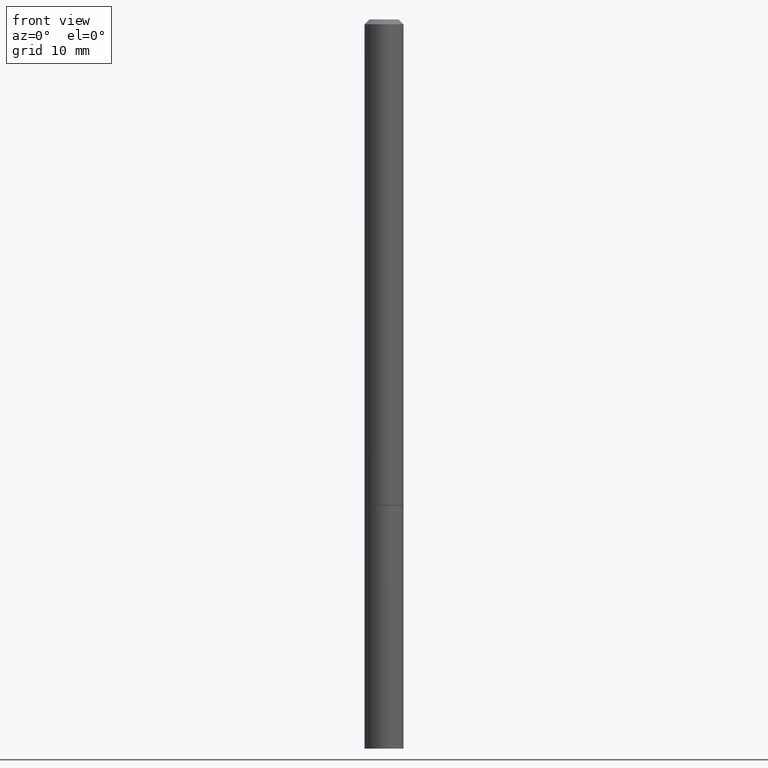
[diagram: clean part render]
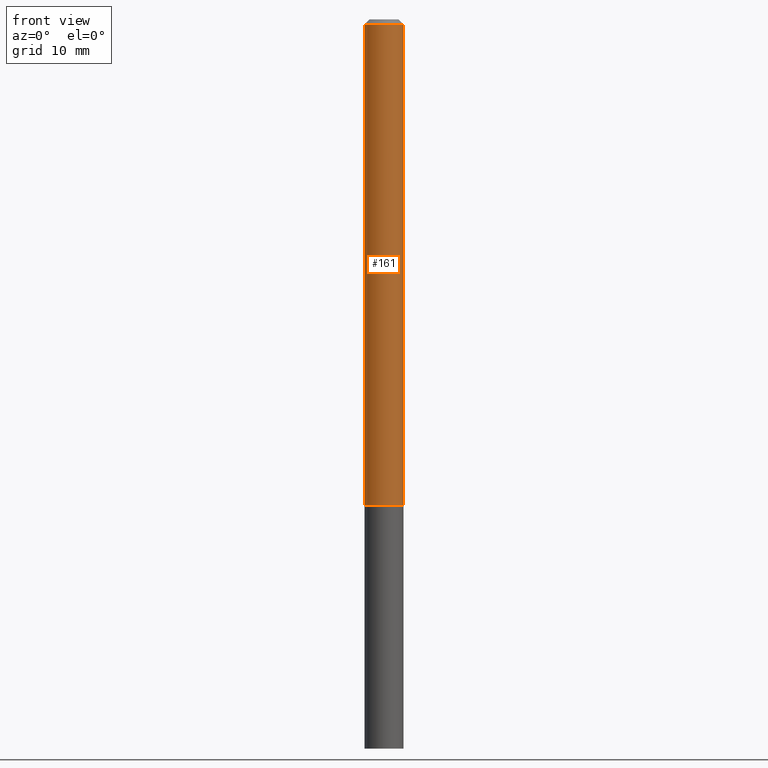
[diagram: same view with one face highlighted and labeled with its STEP entity id]
A machine part, front view. The second image highlights one B-rep face of the part: STEP entity #161.
In plain terms, the highlighted cylindrical surface (edge-blend (fillet) strip) has radius 2.0002 mm, axis along (-0, 0, 1).
Its self-contained STEP definition (entity closure, byte-faithful):
#10 = ORIENTED_EDGE ( 'NONE', *, *, #339, .T. ) ;
#18 = EDGE_CURVE ( 'NONE', #108, #316, #27, .T. ) ;
#20 = CARTESIAN_POINT ( 'NONE',  ( -0.07874999999999987566, 5.595524044110780128E-16, -3.873661383575732186E-30 ) ) ;
#27 = CIRCLE ( 'NONE', #251, 0.07875000000000000056 ) ;
#35 = CARTESIAN_POINT ( 'NONE',  ( 4.811459876169255671E-29, -6.869489534173887122E-15, -1.967499999999999805 ) ) ;
#42 = DIRECTION ( 'NONE',  ( -2.445468806185136597E-29, 3.491481338843145583E-15, 1.000000000000000000 ) ) ;
#69 = DIRECTION ( 'NONE',  ( 1.000000000000000000, -6.982962677686266711E-15, 4.876176775795935793E-29 ) ) ;
#84 = DIRECTION ( 'NONE',  ( -2.445468806185136597E-29, 3.491481338843145583E-15, 1.000000000000000000 ) ) ;
#89 = VECTOR ( 'NONE', #143, 39.37007874015748143 ) ;
#95 = FACE_OUTER_BOUND ( 'NONE', #109, .T. ) ;
#108 = VERTEX_POINT ( 'NONE', #270 ) ;
#109 = EDGE_LOOP ( 'NONE', ( #178, #337, #10, #290 ) ) ;
#116 = VERTEX_POINT ( 'NONE', #156 ) ;
#120 = LINE ( 'NONE', #234, #89 ) ;
#134 = EDGE_CURVE ( 'NONE', #108, #321, #159, .T. ) ;
#143 = DIRECTION ( 'NONE',  ( -2.445468806185136877E-29, 3.491481338843145188E-15, 1.000000000000000000 ) ) ;
#156 = CARTESIAN_POINT ( 'NONE',  ( 0.07874999999999973688, -6.100938441013694129E-16, -0.02000000000000001776 ) ) ;
#159 = LINE ( 'NONE', #20, #333 ) ;
#161 = ADVANCED_FACE ( 'NONE', ( #95 ), #276, .T. ) ;
#166 = DIRECTION ( 'NONE',  ( 1.000000000000000000, -6.982962677686261977E-15, 0.000000000000000000 ) ) ;
#178 = ORIENTED_EDGE ( 'NONE', *, *, #134, .F. ) ;
#206 = CARTESIAN_POINT ( 'NONE',  ( 4.890937612370276662E-31, -6.982962677686296539E-17, -0.02000000000000001776 ) ) ;
#214 = CARTESIAN_POINT ( 'NONE',  ( 0.000000000000000000, 0.000000000000000000, 0.000000000000000000 ) ) ;
#234 = CARTESIAN_POINT ( 'NONE',  ( 0.07874999999999987566, -5.499083108677926554E-16, 3.839989210939293411E-30 ) ) ;
#251 = AXIS2_PLACEMENT_3D ( 'NONE', #35, #295, #166 ) ;
#270 = CARTESIAN_POINT ( 'NONE',  ( -0.07875000000000000056, -2.910107176064290492E-15, -1.967499999999999805 ) ) ;
#275 = EDGE_CURVE ( 'NONE', #321, #116, #334, .T. ) ;
#276 = CYLINDRICAL_SURFACE ( 'NONE', #328, 0.07874999999999987566 ) ;
#288 = CARTESIAN_POINT ( 'NONE',  ( 0.07875000000000000056, -7.419397845041680468E-15, -1.967499999999999805 ) ) ;
#290 = ORIENTED_EDGE ( 'NONE', *, *, #275, .F. ) ;
#294 = DIRECTION ( 'NONE',  ( 1.000000000000000000, -6.982962677686266711E-15, 0.000000000000000000 ) ) ;
#295 = DIRECTION ( 'NONE',  ( -2.445468806185136597E-29, 3.491481338843145583E-15, 1.000000000000000000 ) ) ;
#316 = VERTEX_POINT ( 'NONE', #288 ) ;
#321 = VERTEX_POINT ( 'NONE', #352 ) ;
#328 = AXIS2_PLACEMENT_3D ( 'NONE', #214, #42, #69 ) ;
#333 = VECTOR ( 'NONE', #361, 39.37007874015748143 ) ;
#334 = CIRCLE ( 'NONE', #366, 0.07874999999999973688 ) ;
#337 = ORIENTED_EDGE ( 'NONE', *, *, #18, .T. ) ;
#339 = EDGE_CURVE ( 'NONE', #316, #116, #120, .T. ) ;
#352 = CARTESIAN_POINT ( 'NONE',  ( -0.07874999999999973688, 4.800786840909286670E-16, -0.02000000000000001776 ) ) ;
#361 = DIRECTION ( 'NONE',  ( -2.445468806185136877E-29, 3.491481338843145188E-15, 1.000000000000000000 ) ) ;
#366 = AXIS2_PLACEMENT_3D ( 'NONE', #206, #84, #294 ) ;